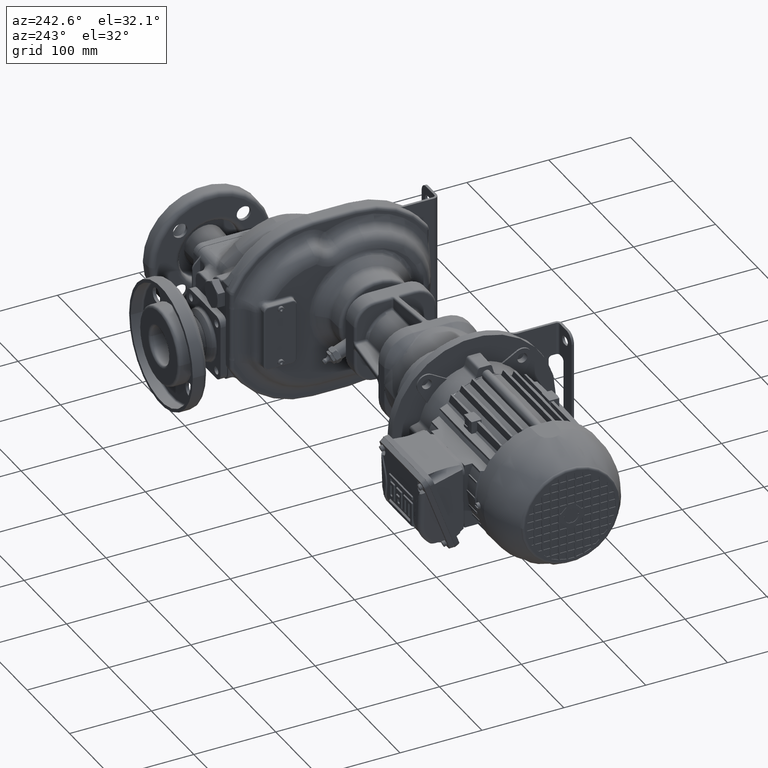
[diagram: clean part render]
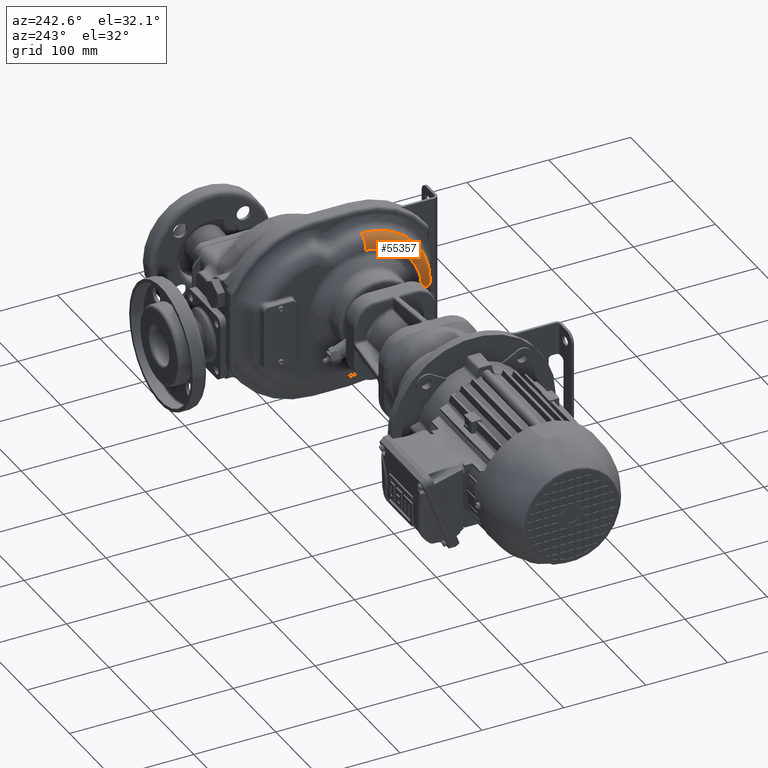
[diagram: same view with one face highlighted and labeled with its STEP entity id]
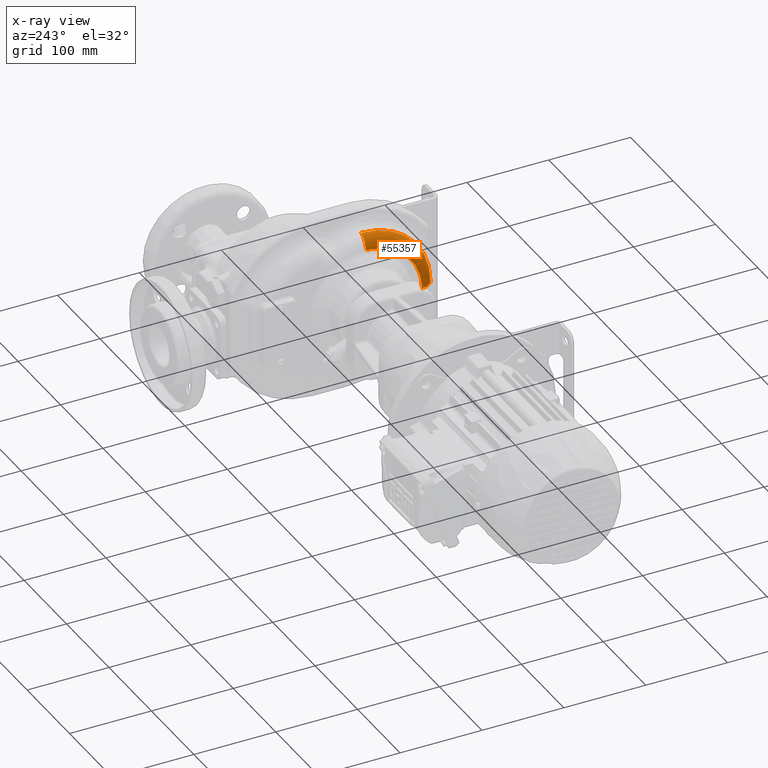
[diagram: x-ray of the same camera — body ghosted, the highlighted face saturated]
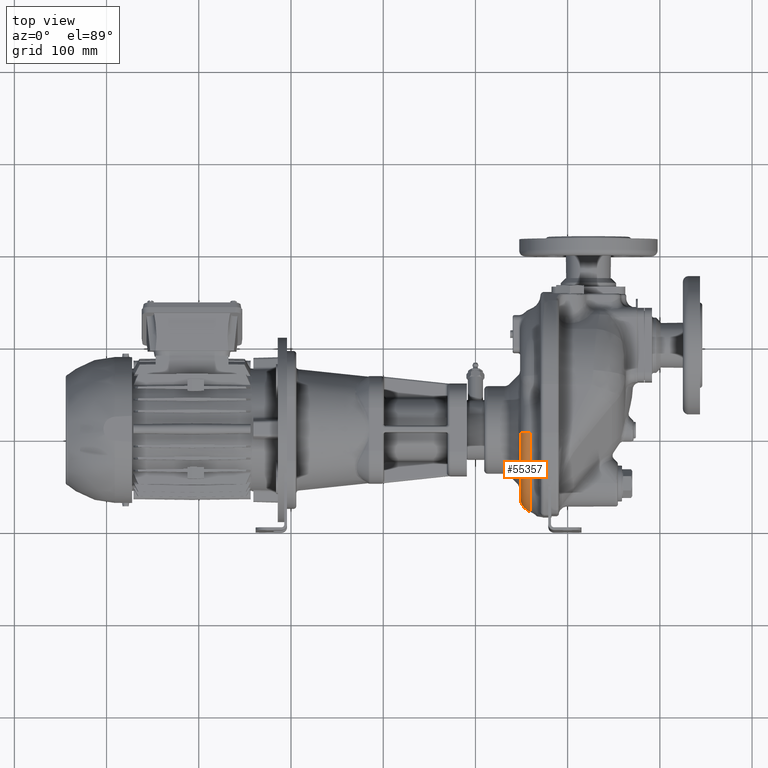
[diagram: same view with one face highlighted and labeled with its STEP entity id]
A machine part, auxiliary view. The second image highlights one B-rep face of the part: STEP entity #55357.
The next image is the same camera in x-ray: the body ghosted, the highlighted face saturated — about 1% of this face is hidden behind the body in this view.
A second angle (top view) of the same face is appended — the face is thin or edge-on in the first view.
In plain terms, the highlighted toroidal blend (fillet) surface has major radius 68.5 mm and minor (blend) radius 17 mm.
Its self-contained STEP definition (entity closure, byte-faithful):
#7577=CARTESIAN_POINT('',(-4.016666666667E1,1.055E2,-4.5E0));
#7578=DIRECTION('',(1.E0,0.E0,0.E0));
#7579=DIRECTION('',(0.E0,0.E0,1.E0));
#7580=AXIS2_PLACEMENT_3D('',#7577,#7578,#7579);
#7582=CARTESIAN_POINT('',(-3.45E1,3.7E1,-4.5E0));
#7583=DIRECTION('',(0.E0,0.E0,1.E0));
#7584=DIRECTION('',(-1.E0,0.E0,0.E0));
#7585=AXIS2_PLACEMENT_3D('',#7582,#7583,#7584);
#7587=CARTESIAN_POINT('',(-5.15E1,9.908412219541E1,6.369887471207E1));
#7588=CARTESIAN_POINT('',(-5.150000000140E1,9.961626425606E1,6.377684031749E1));
#7589=CARTESIAN_POINT('',(-5.149986377030E1,1.006822422905E2,6.391983730592E1));
#7590=CARTESIAN_POINT('',(-5.149926895775E1,1.022852752801E2,6.409542059895E1));
#7591=CARTESIAN_POINT('',(-5.149830273709E1,1.038915076670E2,6.423202101732E1));
#7592=CARTESIAN_POINT('',(-5.149742438278E1,1.049637100640E2,6.429705358188E1));
#7593=CARTESIAN_POINT('',(-5.149693012592E1,1.055E2,6.432305772659E1));
#7884=CARTESIAN_POINT('',(-3.45E1,1.055E2,6.4E1));
#7885=DIRECTION('',(0.E0,1.E0,0.E0));
#7886=DIRECTION('',(-9.998194191716E-1,0.E0,1.900339568148E-2));
#7887=AXIS2_PLACEMENT_3D('',#7884,#7885,#7886);
#7955=CARTESIAN_POINT('',(-5.15E1,1.055E2,-4.5E0));
#7956=DIRECTION('',(-1.E0,0.E0,0.E0));
#7957=DIRECTION('',(0.E0,-1.E0,0.E0));
#7958=AXIS2_PLACEMENT_3D('',#7955,#7956,#7957);
#39932=CARTESIAN_POINT('',(-5.15E1,9.908412219451E1,6.369887471192E1));
#39933=VERTEX_POINT('',#39932);
#39970=CARTESIAN_POINT('',(-4.016666666667E1,2.097224629310E1,-4.5E0));
#39972=VERTEX_POINT('',#39970);
#39978=CARTESIAN_POINT('',(-5.15E1,3.7E1,-4.5E0));
#39979=VERTEX_POINT('',#39978);
#39980=VERTEX_POINT('',#7593);
#39986=CARTESIAN_POINT('',(-4.016666666667E1,1.055E2,8.002775370690E1));
#39987=VERTEX_POINT('',#39986);
#55341=CARTESIAN_POINT('',(-3.45E1,1.055E2,-4.5E0));
#55342=DIRECTION('',(-1.E0,0.E0,0.E0));
#55343=DIRECTION('',(0.E0,-9.999999838278E-1,-1.798456130657E-4));
#55344=AXIS2_PLACEMENT_3D('',#55341,#55342,#55343);
#55345=TOROIDAL_SURFACE('',#55344,6.85E1,1.7E1);
#55346=ORIENTED_EDGE('',*,*,#55332,.T.);
#55348=ORIENTED_EDGE('',*,*,#55347,.F.);
#55350=ORIENTED_EDGE('',*,*,#55349,.T.);
#55352=ORIENTED_EDGE('',*,*,#55351,.T.);
#55354=ORIENTED_EDGE('',*,*,#55353,.T.);
#55355=EDGE_LOOP('',(#55346,#55348,#55350,#55352,#55354));
#55356=FACE_OUTER_BOUND('',#55355,.F.);
#55357=ADVANCED_FACE('',(#55356),#55345,.T.);
#7581=CIRCLE('',#7580,8.452775370690E1);
#7586=CIRCLE('',#7585,1.7E1);
#7594=B_SPLINE_CURVE_WITH_KNOTS('',3,(#7587,#7588,#7589,#7590,#7591,#7592,
#7593),.UNSPECIFIED.,.F.,.F.,(4,1,1,1,4),(0.E0,2.5E-1,5.E-1,7.5E-1,1.E0),
.UNSPECIFIED.);
#7888=CIRCLE('',#7887,1.7E1);
#7959=CIRCLE('',#7958,6.85E1);
#55332=EDGE_CURVE('',#39987,#39972,#7581,.T.);
#55347=EDGE_CURVE('',#39979,#39972,#7586,.T.);
#55349=EDGE_CURVE('',#39979,#39933,#7959,.T.);
#55351=EDGE_CURVE('',#39933,#39980,#7594,.T.);
#55353=EDGE_CURVE('',#39980,#39987,#7888,.T.);